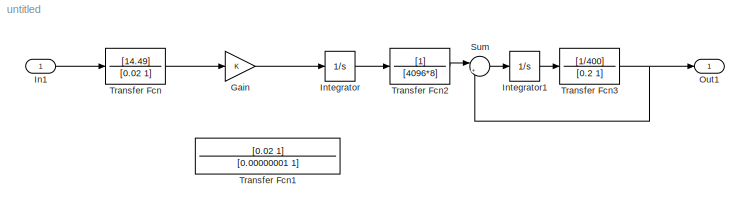
MODEL untitled
KIND model
BLOCK [Gain] Gain
  OutDataType = fixdt(1, 16)
  OutDataTypeMode = Inherit via internal rule
  OutDataTypeStr = Inherit: Inherit via internal rule
  OutScaling = 2^0
  ParamDataTypeStr = Inherit: Inherit via internal rule
  ParameterDataType = fixdt(1, 16)
  ParameterDataTypeMode = Inherit via internal rule
  ParameterScaling = 2^0
  SaturateOnIntegerOverflow = off
BLOCK [Inport] In1
  IconDisplay = Port number
  OutDataType = fixdt(1, 16)
  OutScaling = 2^0
BLOCK [Integrator] Integrator
  Ports = [1, 1]
BLOCK [Integrator] Integrator1
  Ports = [1, 1]
BLOCK [Outport] Out1
  IconDisplay = Port number
  OutDataType = fixdt(1, 16)
  OutScaling = 2^0
BLOCK [Sum] Sum
  IconShape = round
  InputSameDT = off
  Inputs = |+-
  OutDataType = fixdt(1, 16)
  OutDataTypeMode = Inherit via internal rule
  OutDataTypeStr = Inherit: Inherit via internal rule
  OutScaling = 2^0
  Ports = [2, 1]
  SaturateOnIntegerOverflow = off
BLOCK [TransferFcn] Transfer Fcn
  Denominator = [0.02 1]
  Numerator = [14.49]
BLOCK [TransferFcn] Transfer Fcn1
  Denominator = [0.00000001 1]
  Numerator = [0.02 1]
BLOCK [TransferFcn] Transfer Fcn2
  Denominator = [4096*8]
BLOCK [TransferFcn] Transfer Fcn3
  Denominator = [0.2 1]
  Numerator = [1/400]
LINE Gain:1 -> Integrator:1
LINE In1:1 -> Transfer Fcn:1
LINE Integrator1:1 -> Transfer Fcn3:1
LINE Integrator:1 -> Transfer Fcn2:1
LINE Sum:1 -> Integrator1:1
LINE Transfer Fcn2:1 -> Sum:1
NET Transfer Fcn3:1 -> Out1:1, Sum:2
LINE Transfer Fcn:1 -> Gain:1
note: NET lines group one-source signal fan-out (src -> all destinations, sorted); 1:1 wires keep LINE
